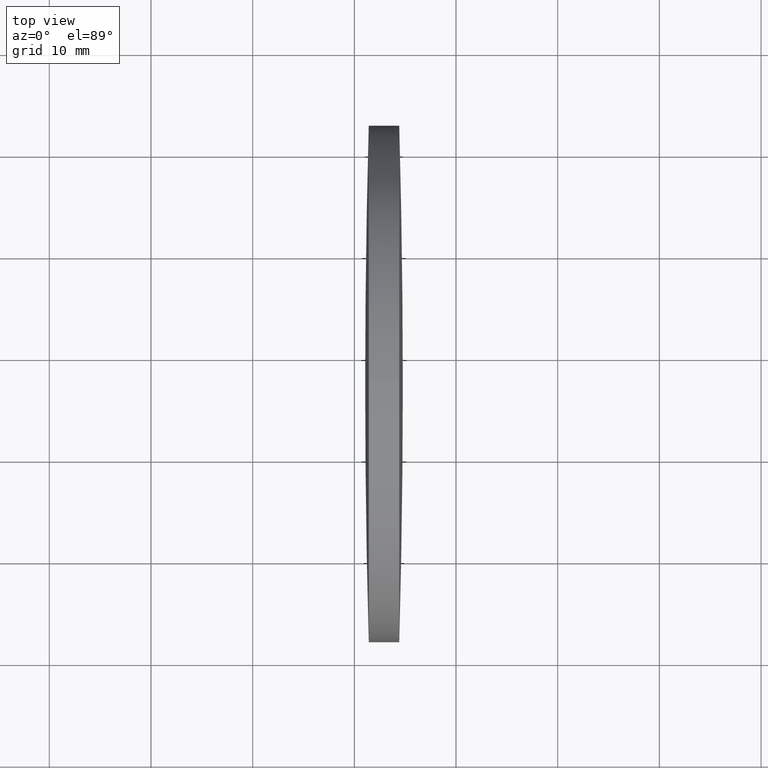
[diagram: clean part render]
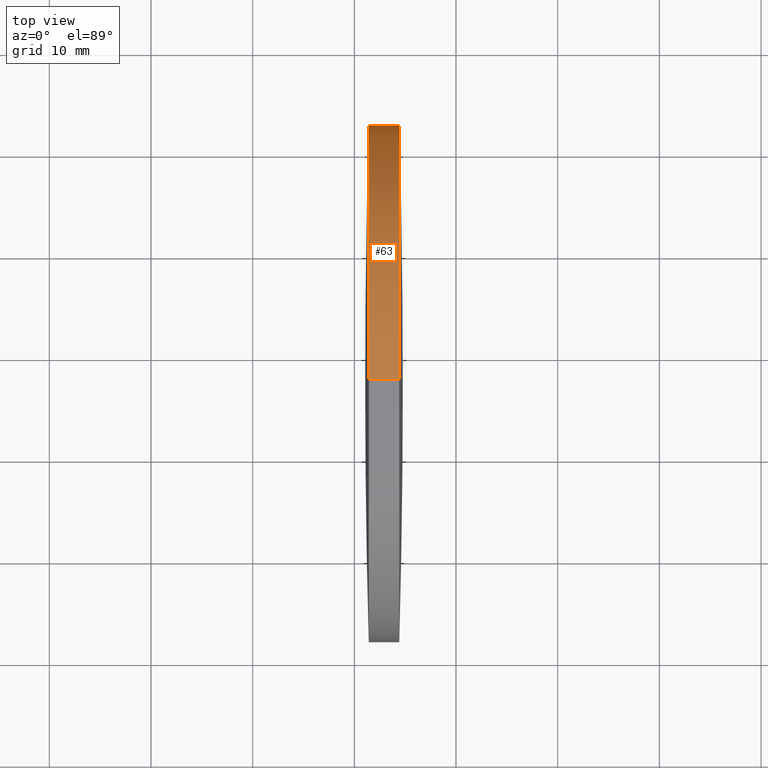
[diagram: same view with one face highlighted and labeled with its STEP entity id]
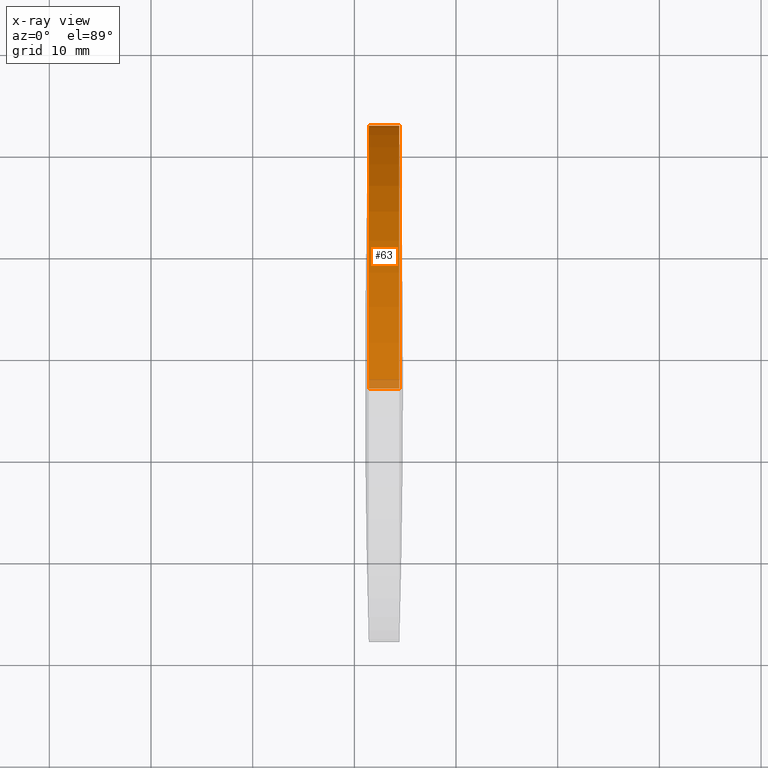
[diagram: x-ray of the same camera — body ghosted, the highlighted face saturated]
A machine part, top view. The second image highlights one B-rep face of the part: STEP entity #63.
The next image is the same camera in x-ray: the body ghosted, the highlighted face saturated — about 3% of this face is hidden behind the body in this view.
In plain terms, the highlighted cylindrical surface (partial cylindrical patch) has radius 25.4 mm, axis along (-1, -0, -0).
Its self-contained STEP definition (entity closure, byte-faithful):
#1 = VECTOR ( 'NONE', #315, 1000.000000000000000 ) ;
#2 = AXIS2_PLACEMENT_3D ( 'NONE', #11, #34, #241 ) ;
#6 = EDGE_CURVE ( 'NONE', #223, #303, #261, .T. ) ;
#11 = CARTESIAN_POINT ( 'NONE',  ( 174.4163664064679400, 97.23222604636956100, 0.0000000000000000000 ) ) ;
#13 = FACE_OUTER_BOUND ( 'NONE', #265, .T. ) ;
#31 = ORIENTED_EDGE ( 'NONE', *, *, #81, .T. ) ;
#32 = ORIENTED_EDGE ( 'NONE', *, *, #290, .F. ) ;
#34 = DIRECTION ( 'NONE',  ( -1.000000000000000000, -0.0000000000000000000, -0.0000000000000000000 ) ) ;
#37 = DIRECTION ( 'NONE',  ( -1.000000000000000000, -0.0000000000000000000, -0.0000000000000000000 ) ) ;
#39 = CARTESIAN_POINT ( 'NONE',  ( 174.4163664064679700, 122.6322260463703800, 0.0000000000000000000 ) ) ;
#41 = DIRECTION ( 'NONE',  ( -1.000000000000000000, -0.0000000000000000000, -0.0000000000000000000 ) ) ;
#42 = VERTEX_POINT ( 'NONE', #332 ) ;
#48 = VECTOR ( 'NONE', #186, 1000.000000000000000 ) ;
#49 = VERTEX_POINT ( 'NONE', #214 ) ;
#51 = ORIENTED_EDGE ( 'NONE', *, *, #6, .T. ) ;
#59 = CIRCLE ( 'NONE', #122, 25.39999999999999100 ) ;
#60 = DIRECTION ( 'NONE',  ( -1.000000000000000000, -0.0000000000000000000, -0.0000000000000000000 ) ) ;
#63 = ADVANCED_FACE ( 'NONE', ( #13 ), #94, .T. ) ;
#73 = EDGE_CURVE ( 'NONE', #303, #285, #75, .T. ) ;
#75 = CIRCLE ( 'NONE', #129, 25.39999999999999100 ) ;
#81 = EDGE_CURVE ( 'NONE', #285, #42, #266, .T. ) ;
#92 = ORIENTED_EDGE ( 'NONE', *, *, #73, .T. ) ;
#93 = DIRECTION ( 'NONE',  ( -1.000000000000000000, -0.0000000000000000000, -0.0000000000000000000 ) ) ;
#94 = CYLINDRICAL_SURFACE ( 'NONE', #112, 25.39999999999999100 ) ;
#97 = CARTESIAN_POINT ( 'NONE',  ( 174.4163664064679400, 97.23222604636956100, 0.0000000000000000000 ) ) ;
#100 = CARTESIAN_POINT ( 'NONE',  ( 165.7441079421506900, 97.23222604636956100, 0.0000000000000000000 ) ) ;
#104 = EDGE_CURVE ( 'NONE', #199, #49, #217, .T. ) ;
#112 = AXIS2_PLACEMENT_3D ( 'NONE', #100, #93, #213 ) ;
#122 = AXIS2_PLACEMENT_3D ( 'NONE', #197, #41, #190 ) ;
#127 = DIRECTION ( 'NONE',  ( 0.0000000000000000000, 0.0000000000000000000, 1.000000000000000000 ) ) ;
#129 = AXIS2_PLACEMENT_3D ( 'NONE', #97, #60, #127 ) ;
#136 = EDGE_CURVE ( 'NONE', #223, #199, #270, .T. ) ;
#152 = AXIS2_PLACEMENT_3D ( 'NONE', #240, #37, #158 ) ;
#158 = DIRECTION ( 'NONE',  ( 0.0000000000000000000, 0.0000000000000000000, 1.000000000000000000 ) ) ;
#186 = DIRECTION ( 'NONE',  ( -1.000000000000000000, -0.0000000000000000000, -0.0000000000000000000 ) ) ;
#190 = DIRECTION ( 'NONE',  ( 0.0000000000000000000, 0.0000000000000000000, 1.000000000000000000 ) ) ;
#197 = CARTESIAN_POINT ( 'NONE',  ( 171.4164086921822200, 97.23222604636956100, 0.0000000000000000000 ) ) ;
#199 = VERTEX_POINT ( 'NONE', #317 ) ;
#213 = DIRECTION ( 'NONE',  ( 0.0000000000000000000, 0.0000000000000000000, 1.000000000000000000 ) ) ;
#214 = CARTESIAN_POINT ( 'NONE',  ( 171.4164086921822200, 122.6322260463688400, 0.0000000000000000000 ) ) ;
#217 = CIRCLE ( 'NONE', #152, 25.39999999999999100 ) ;
#223 = VERTEX_POINT ( 'NONE', #320 ) ;
#240 = CARTESIAN_POINT ( 'NONE',  ( 171.4164086921822200, 97.23222604636956100, 0.0000000000000000000 ) ) ;
#241 = DIRECTION ( 'NONE',  ( 0.0000000000000000000, 0.0000000000000000000, 1.000000000000000000 ) ) ;
#242 = CARTESIAN_POINT ( 'NONE',  ( 165.7441079421506900, 97.23222604636956100, 25.39999999999999100 ) ) ;
#248 = CARTESIAN_POINT ( 'NONE',  ( 174.4163664064679400, 97.23222604636956100, -25.39999999999999100 ) ) ;
#253 = ORIENTED_EDGE ( 'NONE', *, *, #136, .F. ) ;
#261 = CIRCLE ( 'NONE', #2, 25.39999999999999100 ) ;
#265 = EDGE_LOOP ( 'NONE', ( #92, #31, #32, #314, #253, #51 ) ) ;
#266 = LINE ( 'NONE', #337, #1 ) ;
#270 = LINE ( 'NONE', #242, #48 ) ;
#285 = VERTEX_POINT ( 'NONE', #248 ) ;
#290 = EDGE_CURVE ( 'NONE', #49, #42, #59, .T. ) ;
#303 = VERTEX_POINT ( 'NONE', #39 ) ;
#314 = ORIENTED_EDGE ( 'NONE', *, *, #104, .F. ) ;
#315 = DIRECTION ( 'NONE',  ( -1.000000000000000000, -0.0000000000000000000, -0.0000000000000000000 ) ) ;
#317 = CARTESIAN_POINT ( 'NONE',  ( 171.4164086921822200, 97.23222604636956100, 25.39999999999999100 ) ) ;
#320 = CARTESIAN_POINT ( 'NONE',  ( 174.4163664064679400, 97.23222604636956100, 25.39999999999999100 ) ) ;
#332 = CARTESIAN_POINT ( 'NONE',  ( 171.4164086921822200, 97.23222604636956100, -25.39999999999999100 ) ) ;
#337 = CARTESIAN_POINT ( 'NONE',  ( 165.7441079421506900, 97.23222604636956100, -25.39999999999999100 ) ) ;